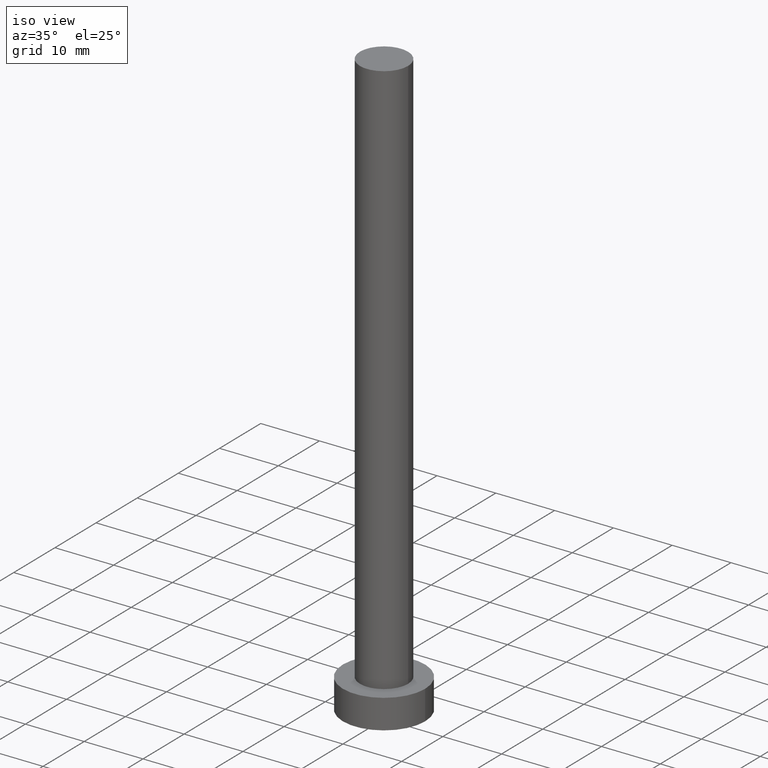
[diagram: clean part render]
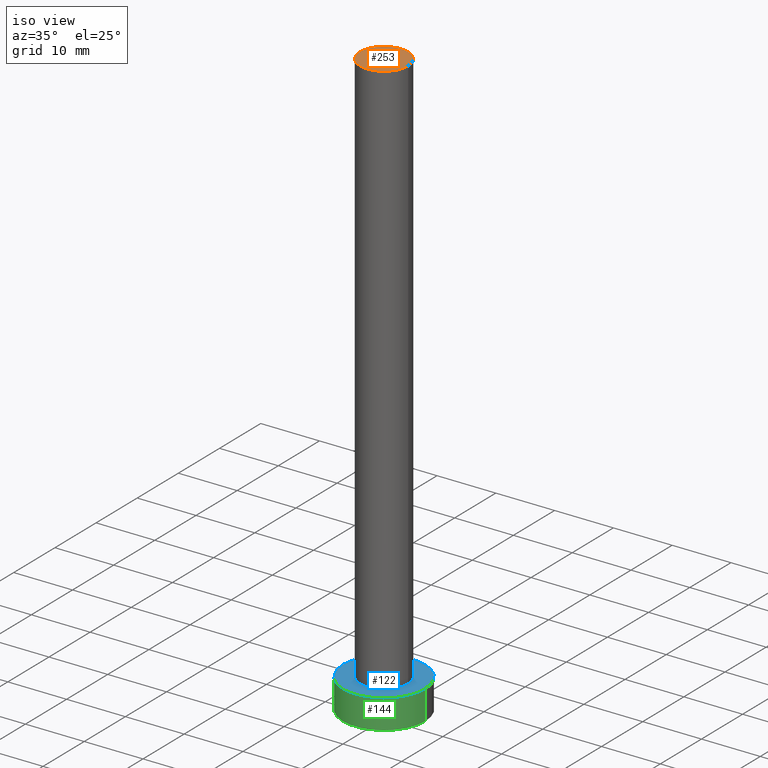
[diagram: same view with three faces highlighted in distinct colors, each labeled with its STEP entity id]
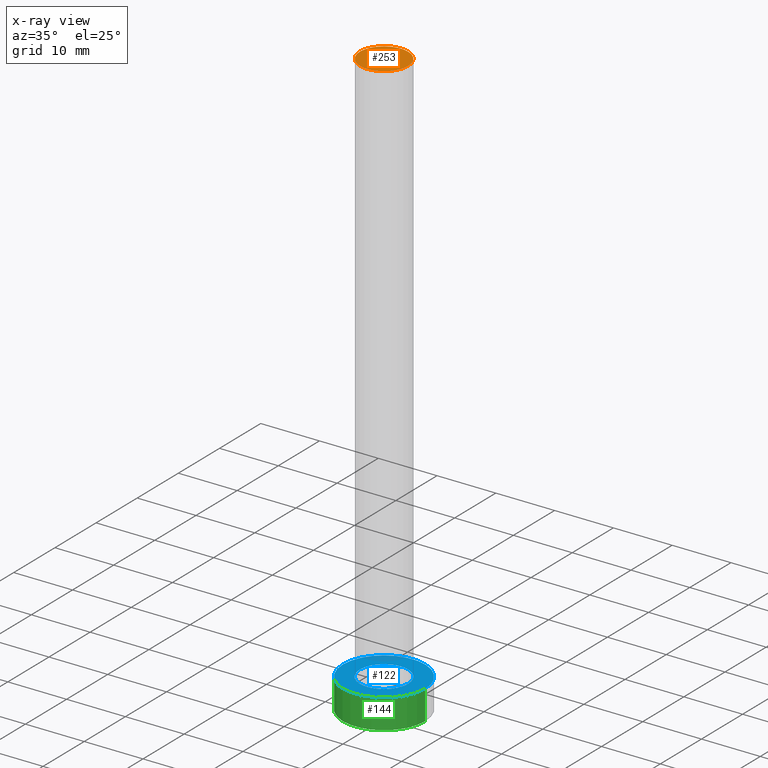
[diagram: x-ray of the same camera — body ghosted, the three highlighted faces saturated]
A machine part, iso view with three faces highlighted in distinct colors.
The next image is the same camera in x-ray (body ghosted, the three faces saturated) — at least one of them is partly hidden behind the body in this view.
Their STEP definitions:

[orange] entity #253 — the highlighted planar face has unit normal (0, 0, 1).
#1 = EDGE_CURVE ( 'NONE', #114, #191, #79, .T. ) ;
#13 = CARTESIAN_POINT ( 'NONE',  ( 0.000000000000000000, 0.000000000000000000, 100.0000000000000000 ) ) ;
#18 = EDGE_LOOP ( 'NONE', ( #77, #152 ) ) ;
#42 = CARTESIAN_POINT ( 'NONE',  ( -4.099999999999999645, 0.000000000000000000, 100.0000000000000000 ) ) ;
#63 = DIRECTION ( 'NONE',  ( 0.000000000000000000, 0.000000000000000000, 1.000000000000000000 ) ) ;
#66 = CIRCLE ( 'NONE', #201, 4.099999999999999645 ) ;
#77 = ORIENTED_EDGE ( 'NONE', *, *, #192, .T. ) ;
#78 = DIRECTION ( 'NONE',  ( 1.000000000000000000, 0.000000000000000000, 0.000000000000000000 ) ) ;
#79 = CIRCLE ( 'NONE', #249, 4.099999999999999645 ) ;
#99 = PLANE ( 'NONE',  #233 ) ;
#102 = DIRECTION ( 'NONE',  ( 1.000000000000000000, 0.000000000000000000, 0.000000000000000000 ) ) ;
#114 = VERTEX_POINT ( 'NONE', #139 ) ;
#139 = CARTESIAN_POINT ( 'NONE',  ( 4.099999999999999645, 5.021051876504147385E-16, 100.0000000000000000 ) ) ;
#152 = ORIENTED_EDGE ( 'NONE', *, *, #1, .T. ) ;
#159 = DIRECTION ( 'NONE',  ( 0.000000000000000000, 0.000000000000000000, 1.000000000000000000 ) ) ;
#163 = DIRECTION ( 'NONE',  ( 1.000000000000000000, 0.000000000000000000, -0.000000000000000000 ) ) ;
#184 = CARTESIAN_POINT ( 'NONE',  ( 0.000000000000000000, 0.000000000000000000, 100.0000000000000000 ) ) ;
#191 = VERTEX_POINT ( 'NONE', #42 ) ;
#192 = EDGE_CURVE ( 'NONE', #191, #114, #66, .T. ) ;
#201 = AXIS2_PLACEMENT_3D ( 'NONE', #240, #63, #102 ) ;
#233 = AXIS2_PLACEMENT_3D ( 'NONE', #184, #159, #163 ) ;
#235 = DIRECTION ( 'NONE',  ( 0.000000000000000000, 0.000000000000000000, 1.000000000000000000 ) ) ;
#240 = CARTESIAN_POINT ( 'NONE',  ( 0.000000000000000000, 0.000000000000000000, 100.0000000000000000 ) ) ;
#243 = FACE_OUTER_BOUND ( 'NONE', #18, .T. ) ;
#249 = AXIS2_PLACEMENT_3D ( 'NONE', #13, #235, #78 ) ;
#253 = ADVANCED_FACE ( 'NONE', ( #243 ), #99, .T. ) ;

[blue] entity #122 — the highlighted planar face has unit normal (0, 0, 1).
#3 = CARTESIAN_POINT ( 'NONE',  ( 0.000000000000000000, 0.000000000000000000, 5.000000000000000000 ) ) ;
#7 = CARTESIAN_POINT ( 'NONE',  ( -4.099999999999999645, 0.000000000000000000, 5.000000000000000000 ) ) ;
#15 = ORIENTED_EDGE ( 'NONE', *, *, #46, .T. ) ;
#23 = FACE_BOUND ( 'NONE', #94, .T. ) ;
#25 = CARTESIAN_POINT ( 'NONE',  ( 0.000000000000000000, 0.000000000000000000, 5.000000000000000000 ) ) ;
#43 = CARTESIAN_POINT ( 'NONE',  ( 7.000000000000000000, 8.572527594031473190E-16, 5.000000000000000000 ) ) ;
#46 = EDGE_CURVE ( 'NONE', #251, #155, #98, .T. ) ;
#53 = AXIS2_PLACEMENT_3D ( 'NONE', #25, #222, #124 ) ;
#59 = DIRECTION ( 'NONE',  ( 0.000000000000000000, 0.000000000000000000, 1.000000000000000000 ) ) ;
#61 = PLANE ( 'NONE',  #84 ) ;
#73 = DIRECTION ( 'NONE',  ( 1.000000000000000000, 0.000000000000000000, 0.000000000000000000 ) ) ;
#75 = AXIS2_PLACEMENT_3D ( 'NONE', #217, #113, #73 ) ;
#81 = EDGE_CURVE ( 'NONE', #135, #254, #178, .T. ) ;
#83 = CARTESIAN_POINT ( 'NONE',  ( 0.000000000000000000, 0.000000000000000000, 5.000000000000000000 ) ) ;
#84 = AXIS2_PLACEMENT_3D ( 'NONE', #3, #59, #86 ) ;
#86 = DIRECTION ( 'NONE',  ( 1.000000000000000000, 0.000000000000000000, -0.000000000000000000 ) ) ;
#94 = EDGE_LOOP ( 'NONE', ( #195, #97 ) ) ;
#97 = ORIENTED_EDGE ( 'NONE', *, *, #81, .F. ) ;
#98 = CIRCLE ( 'NONE', #75, 7.000000000000000000 ) ;
#100 = AXIS2_PLACEMENT_3D ( 'NONE', #123, #200, #203 ) ;
#101 = FACE_OUTER_BOUND ( 'NONE', #218, .T. ) ;
#113 = DIRECTION ( 'NONE',  ( 0.000000000000000000, 0.000000000000000000, 1.000000000000000000 ) ) ;
#122 = ADVANCED_FACE ( 'NONE', ( #23, #101 ), #61, .T. ) ;
#123 = CARTESIAN_POINT ( 'NONE',  ( 0.000000000000000000, 0.000000000000000000, 5.000000000000000000 ) ) ;
#124 = DIRECTION ( 'NONE',  ( 1.000000000000000000, 0.000000000000000000, 0.000000000000000000 ) ) ;
#129 = AXIS2_PLACEMENT_3D ( 'NONE', #83, #138, #221 ) ;
#135 = VERTEX_POINT ( 'NONE', #241 ) ;
#136 = CIRCLE ( 'NONE', #53, 4.099999999999999645 ) ;
#138 = DIRECTION ( 'NONE',  ( 0.000000000000000000, 0.000000000000000000, 1.000000000000000000 ) ) ;
#155 = VERTEX_POINT ( 'NONE', #43 ) ;
#161 = EDGE_CURVE ( 'NONE', #254, #135, #136, .T. ) ;
#164 = CARTESIAN_POINT ( 'NONE',  ( -7.000000000000000000, 0.000000000000000000, 5.000000000000000000 ) ) ;
#173 = ORIENTED_EDGE ( 'NONE', *, *, #210, .T. ) ;
#178 = CIRCLE ( 'NONE', #129, 4.099999999999999645 ) ;
#195 = ORIENTED_EDGE ( 'NONE', *, *, #161, .F. ) ;
#200 = DIRECTION ( 'NONE',  ( 0.000000000000000000, 0.000000000000000000, 1.000000000000000000 ) ) ;
#203 = DIRECTION ( 'NONE',  ( 1.000000000000000000, 0.000000000000000000, 0.000000000000000000 ) ) ;
#210 = EDGE_CURVE ( 'NONE', #155, #251, #229, .T. ) ;
#217 = CARTESIAN_POINT ( 'NONE',  ( 0.000000000000000000, 0.000000000000000000, 5.000000000000000000 ) ) ;
#218 = EDGE_LOOP ( 'NONE', ( #15, #173 ) ) ;
#221 = DIRECTION ( 'NONE',  ( 1.000000000000000000, 0.000000000000000000, 0.000000000000000000 ) ) ;
#222 = DIRECTION ( 'NONE',  ( 0.000000000000000000, 0.000000000000000000, 1.000000000000000000 ) ) ;
#229 = CIRCLE ( 'NONE', #100, 7.000000000000000000 ) ;
#241 = CARTESIAN_POINT ( 'NONE',  ( 4.099999999999999645, 5.021051876504147385E-16, 5.000000000000000000 ) ) ;
#251 = VERTEX_POINT ( 'NONE', #164 ) ;
#254 = VERTEX_POINT ( 'NONE', #7 ) ;

[green] entity #144 — the highlighted cylindrical surface (partial cylindrical patch) has radius 7 mm, axis along (-0, -0, -1).
#12 = VECTOR ( 'NONE', #202, 1000.000000000000000 ) ;
#19 = ORIENTED_EDGE ( 'NONE', *, *, #46, .F. ) ;
#21 = DIRECTION ( 'NONE',  ( 1.000000000000000000, 0.000000000000000000, 0.000000000000000000 ) ) ;
#22 = VECTOR ( 'NONE', #44, 1000.000000000000000 ) ;
#26 = CARTESIAN_POINT ( 'NONE',  ( 7.000000000000000000, 8.572527594031473190E-16, 5.000000000000000000 ) ) ;
#40 = ORIENTED_EDGE ( 'NONE', *, *, #248, .T. ) ;
#41 = DIRECTION ( 'NONE',  ( 0.000000000000000000, 0.000000000000000000, 1.000000000000000000 ) ) ;
#43 = CARTESIAN_POINT ( 'NONE',  ( 7.000000000000000000, 8.572527594031473190E-16, 5.000000000000000000 ) ) ;
#44 = DIRECTION ( 'NONE',  ( -0.000000000000000000, -0.000000000000000000, -1.000000000000000000 ) ) ;
#46 = EDGE_CURVE ( 'NONE', #251, #155, #98, .T. ) ;
#51 = VERTEX_POINT ( 'NONE', #118 ) ;
#57 = VERTEX_POINT ( 'NONE', #197 ) ;
#58 = CARTESIAN_POINT ( 'NONE',  ( 0.000000000000000000, 0.000000000000000000, 0.000000000000000000 ) ) ;
#69 = EDGE_CURVE ( 'NONE', #155, #51, #160, .T. ) ;
#73 = DIRECTION ( 'NONE',  ( 1.000000000000000000, 0.000000000000000000, 0.000000000000000000 ) ) ;
#75 = AXIS2_PLACEMENT_3D ( 'NONE', #217, #113, #73 ) ;
#80 = DIRECTION ( 'NONE',  ( -1.000000000000000000, 0.000000000000000000, 0.000000000000000000 ) ) ;
#82 = FACE_OUTER_BOUND ( 'NONE', #111, .T. ) ;
#85 = CARTESIAN_POINT ( 'NONE',  ( -7.000000000000000000, 0.000000000000000000, 5.000000000000000000 ) ) ;
#98 = CIRCLE ( 'NONE', #75, 7.000000000000000000 ) ;
#103 = DIRECTION ( 'NONE',  ( -0.000000000000000000, -0.000000000000000000, -1.000000000000000000 ) ) ;
#111 = EDGE_LOOP ( 'NONE', ( #213, #19, #40, #176 ) ) ;
#112 = AXIS2_PLACEMENT_3D ( 'NONE', #58, #41, #21 ) ;
#113 = DIRECTION ( 'NONE',  ( 0.000000000000000000, 0.000000000000000000, 1.000000000000000000 ) ) ;
#118 = CARTESIAN_POINT ( 'NONE',  ( 7.000000000000000000, 8.572527594031473190E-16, 0.000000000000000000 ) ) ;
#142 = CYLINDRICAL_SURFACE ( 'NONE', #156, 7.000000000000000000 ) ;
#144 = ADVANCED_FACE ( 'NONE', ( #82 ), #142, .T. ) ;
#149 = CIRCLE ( 'NONE', #112, 7.000000000000000000 ) ;
#155 = VERTEX_POINT ( 'NONE', #43 ) ;
#156 = AXIS2_PLACEMENT_3D ( 'NONE', #199, #103, #80 ) ;
#160 = LINE ( 'NONE', #26, #12 ) ;
#164 = CARTESIAN_POINT ( 'NONE',  ( -7.000000000000000000, 0.000000000000000000, 5.000000000000000000 ) ) ;
#176 = ORIENTED_EDGE ( 'NONE', *, *, #230, .T. ) ;
#182 = LINE ( 'NONE', #85, #22 ) ;
#197 = CARTESIAN_POINT ( 'NONE',  ( -7.000000000000000000, 0.000000000000000000, 0.000000000000000000 ) ) ;
#199 = CARTESIAN_POINT ( 'NONE',  ( 0.000000000000000000, 0.000000000000000000, 5.000000000000000000 ) ) ;
#202 = DIRECTION ( 'NONE',  ( -0.000000000000000000, -0.000000000000000000, -1.000000000000000000 ) ) ;
#213 = ORIENTED_EDGE ( 'NONE', *, *, #69, .F. ) ;
#217 = CARTESIAN_POINT ( 'NONE',  ( 0.000000000000000000, 0.000000000000000000, 5.000000000000000000 ) ) ;
#230 = EDGE_CURVE ( 'NONE', #57, #51, #149, .T. ) ;
#248 = EDGE_CURVE ( 'NONE', #251, #57, #182, .T. ) ;
#251 = VERTEX_POINT ( 'NONE', #164 ) ;